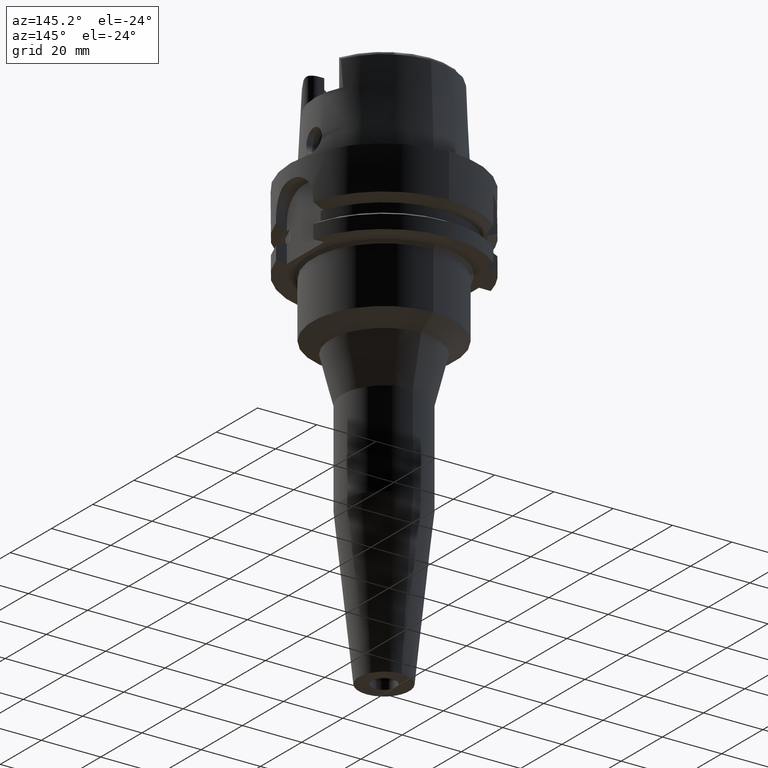
[diagram: clean part render]
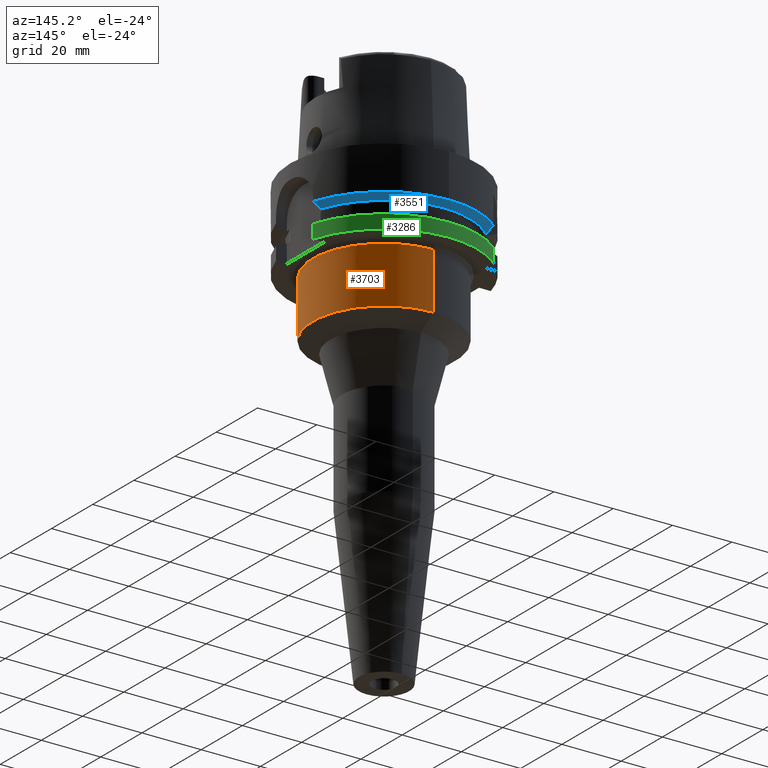
[diagram: same view with three faces highlighted in distinct colors, each labeled with its STEP entity id]
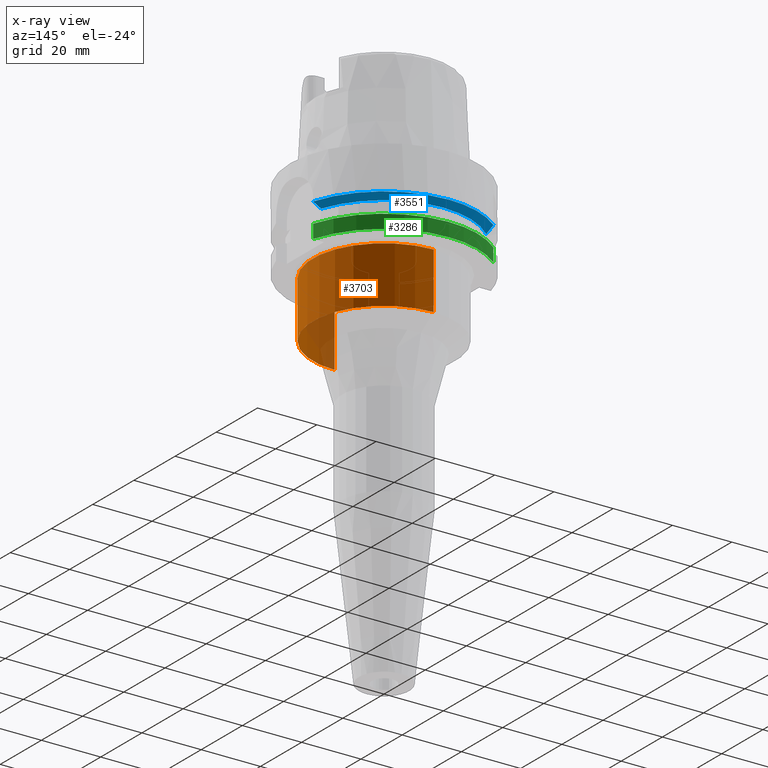
[diagram: x-ray of the same camera — body ghosted, the three highlighted faces saturated]
A machine part, auxiliary view with three faces highlighted in distinct colors.
The next image is the same camera in x-ray (body ghosted, the three faces saturated) — at least one of them is partly hidden behind the body in this view.
Their STEP definitions:

[orange] entity #3703 — the highlighted cylindrical surface (partial cylindrical patch) has radius 24 mm, axis along (0, 0, 1).
#1631=CARTESIAN_POINT('',(0.E0,0.E0,-2.7E1));
#1632=DIRECTION('',(0.E0,0.E0,-1.E0));
#1633=DIRECTION('',(0.E0,1.E0,0.E0));
#1634=AXIS2_PLACEMENT_3D('',#1631,#1632,#1633);
#1639=DIRECTION('',(0.E0,8.152542968194E-14,-1.E0));
#1640=VECTOR('',#1639,1.9E1);
#1641=CARTESIAN_POINT('',(0.E0,2.4E1,-2.7E1));
#1642=LINE('',#1641,#1640);
#1646=DIRECTION('',(0.E0,-8.152542968194E-14,-1.E0));
#1647=VECTOR('',#1646,1.9E1);
#1648=CARTESIAN_POINT('',(0.E0,-2.4E1,-2.7E1));
#1649=LINE('',#1648,#1647);
#1683=CARTESIAN_POINT('',(0.E0,0.E0,-4.6E1));
#1684=DIRECTION('',(0.E0,0.E0,1.E0));
#1685=DIRECTION('',(0.E0,-1.E0,0.E0));
#1686=AXIS2_PLACEMENT_3D('',#1683,#1684,#1685);
#2452=CARTESIAN_POINT('',(0.E0,2.4E1,-4.6E1));
#2453=VERTEX_POINT('',#2452);
#2454=CARTESIAN_POINT('',(0.E0,-2.4E1,-4.6E1));
#2455=VERTEX_POINT('',#2454);
#2456=CARTESIAN_POINT('',(0.E0,2.4E1,-2.7E1));
#2457=VERTEX_POINT('',#2456);
#2458=CARTESIAN_POINT('',(0.E0,-2.4E1,-2.7E1));
#2459=VERTEX_POINT('',#2458);
#3689=CARTESIAN_POINT('',(0.E0,0.E0,-1.591E2));
#3690=DIRECTION('',(0.E0,0.E0,1.E0));
#3691=DIRECTION('',(0.E0,1.E0,0.E0));
#3692=AXIS2_PLACEMENT_3D('',#3689,#3690,#3691);
#3693=CYLINDRICAL_SURFACE('',#3692,2.4E1);
#3695=ORIENTED_EDGE('',*,*,#3694,.T.);
#3697=ORIENTED_EDGE('',*,*,#3696,.F.);
#3699=ORIENTED_EDGE('',*,*,#3698,.F.);
#3700=ORIENTED_EDGE('',*,*,#3682,.F.);
#3701=EDGE_LOOP('',(#3695,#3697,#3699,#3700));
#3702=FACE_OUTER_BOUND('',#3701,.F.);
#1635=CIRCLE('',#1634,2.4E1);
#1687=CIRCLE('',#1686,2.4E1);
#3682=EDGE_CURVE('',#2457,#2459,#1635,.T.);
#3694=EDGE_CURVE('',#2457,#2453,#1642,.T.);
#3696=EDGE_CURVE('',#2455,#2453,#1687,.T.);
#3698=EDGE_CURVE('',#2459,#2455,#1649,.T.);
#3703=ADVANCED_FACE('',(#3702),#3693,.T.);

[blue] entity #3551 — the highlighted conical surface has half-angle 60 deg.
#706=CARTESIAN_POINT('',(-1.999999142507E1,2.085843318849E1,-1.6125E1));
#707=CARTESIAN_POINT('',(-1.999999142507E1,2.124691956341E1,-1.596310477196E1));
#708=CARTESIAN_POINT('',(-2.000000520740E1,2.202238652283E1,-1.563521352518E1));
#709=CARTESIAN_POINT('',(-1.999999463649E1,2.318178825072E1,-1.513454848004E1));
#710=CARTESIAN_POINT('',(-2.000000904326E1,2.395170717240E1,-1.479396141890E1));
#711=CARTESIAN_POINT('',(-2.000000904326E1,2.433617961532E1,-1.462246850769E1));
#769=CARTESIAN_POINT('',(0.E0,0.E0,-1.6125E1));
#770=DIRECTION('',(0.E0,0.E0,1.E0));
#771=DIRECTION('',(9.502643111725E-1,3.114446000686E-1,0.E0));
#772=AXIS2_PLACEMENT_3D('',#769,#770,#771);
#777=CARTESIAN_POINT('',(0.E0,0.E0,-1.6125E1));
#778=DIRECTION('',(0.E0,0.E0,1.E0));
#779=DIRECTION('',(0.E0,1.E0,0.E0));
#780=AXIS2_PLACEMENT_3D('',#777,#778,#779);
#1412=CARTESIAN_POINT('',(2.746035048403E1,9.000000214625E0,-1.6125E1));
#1413=CARTESIAN_POINT('',(2.775625425626E1,9.000000214625E0,-1.596265672987E1));
#1414=CARTESIAN_POINT('',(2.835274665350E1,8.999999992174E0,-1.563489256981E1));
#1415=CARTESIAN_POINT('',(2.926159276161E1,8.999999705452E0,-1.513403981892E1));
#1416=CARTESIAN_POINT('',(2.987689953426E1,9.000000692495E0,-1.479402310489E1));
#1417=CARTESIAN_POINT('',(3.018691748979E1,9.000000692495E0,-1.462249534001E1));
#1422=CARTESIAN_POINT('',(0.E0,0.E0,-1.462250092524E1));
#1423=DIRECTION('',(0.E0,0.E0,1.E0));
#1424=DIRECTION('',(9.583148474999E-1,2.857142857143E-1,0.E0));
#1425=AXIS2_PLACEMENT_3D('',#1422,#1423,#1424);
#1430=CARTESIAN_POINT('',(0.E0,0.E0,-1.462250092524E1));
#1431=DIRECTION('',(0.E0,0.E0,1.E0));
#1432=DIRECTION('',(0.E0,1.E0,0.E0));
#1433=AXIS2_PLACEMENT_3D('',#1430,#1431,#1432);
#2496=CARTESIAN_POINT('',(-1.999999142507E1,2.085843318849E1,-1.6125E1));
#2498=VERTEX_POINT('',#2496);
#2499=VERTEX_POINT('',#711);
#2603=CARTESIAN_POINT('',(2.746035048403E1,9.000000214625E0,-1.6125E1));
#2604=VERTEX_POINT('',#2603);
#2605=CARTESIAN_POINT('',(2.644025879904E-14,2.889759526419E1,-1.6125E1));
#2606=VERTEX_POINT('',#2605);
#2609=VERTEX_POINT('',#1417);
#2610=CARTESIAN_POINT('',(0.E0,3.15E1,-1.462250092524E1));
#2611=VERTEX_POINT('',#2610);
#3538=CARTESIAN_POINT('',(0.E0,0.E0,-1.537375046262E1));
#3539=DIRECTION('',(0.E0,0.E0,1.E0));
#3540=DIRECTION('',(0.E0,1.E0,0.E0));
#3541=AXIS2_PLACEMENT_3D('',#3538,#3539,#3540);
#3542=CONICAL_SURFACE('',#3541,3.019879763210E1,6.E1);
#3543=ORIENTED_EDGE('',*,*,#3038,.F.);
#3544=ORIENTED_EDGE('',*,*,#3072,.F.);
#3545=ORIENTED_EDGE('',*,*,#3070,.F.);
#3546=ORIENTED_EDGE('',*,*,#3495,.T.);
#3547=ORIENTED_EDGE('',*,*,#3480,.T.);
#3548=ORIENTED_EDGE('',*,*,#3007,.T.);
#3549=EDGE_LOOP('',(#3543,#3544,#3545,#3546,#3547,#3548));
#3550=FACE_OUTER_BOUND('',#3549,.F.);
#712=B_SPLINE_CURVE_WITH_KNOTS('',3,(#706,#707,#708,#709,#710,#711),
.UNSPECIFIED.,.F.,.F.,(4,1,1,4),(0.E0,3.333333333333E-1,6.666666666667E-1,1.E0),
.UNSPECIFIED.);
#773=CIRCLE('',#772,2.889759526419E1);
#781=CIRCLE('',#780,2.889759526419E1);
#1418=B_SPLINE_CURVE_WITH_KNOTS('',3,(#1412,#1413,#1414,#1415,#1416,#1417),
.UNSPECIFIED.,.F.,.F.,(4,1,1,4),(0.E0,3.333333333333E-1,6.666666666667E-1,1.E0),
.UNSPECIFIED.);
#1426=CIRCLE('',#1425,3.15E1);
#1434=CIRCLE('',#1433,3.15E1);
#3007=EDGE_CURVE('',#2611,#2499,#1434,.T.);
#3038=EDGE_CURVE('',#2498,#2499,#712,.T.);
#3070=EDGE_CURVE('',#2604,#2606,#773,.T.);
#3072=EDGE_CURVE('',#2606,#2498,#781,.T.);
#3480=EDGE_CURVE('',#2609,#2611,#1426,.T.);
#3495=EDGE_CURVE('',#2604,#2609,#1418,.T.);
#3551=ADVANCED_FACE('',(#3550),#3542,.T.);

[green] entity #3286 — the highlighted cylindrical surface (partial cylindrical patch) has radius 31.5 mm, axis along (0, 0, 1).
#1018=CARTESIAN_POINT('',(0.E0,0.E0,-2.6E1));
#1019=DIRECTION('',(0.E0,0.E0,1.E0));
#1020=DIRECTION('',(9.583148474999E-1,2.857142857143E-1,0.E0));
#1021=AXIS2_PLACEMENT_3D('',#1018,#1019,#1020);
#1026=CARTESIAN_POINT('',(0.E0,0.E0,-2.6E1));
#1027=DIRECTION('',(0.E0,0.E0,1.E0));
#1028=DIRECTION('',(0.E0,1.E0,0.E0));
#1029=AXIS2_PLACEMENT_3D('',#1026,#1027,#1028);
#1057=DIRECTION('',(1.956587004959E-6,1.607966851556E-6,-9.999999999968E-1));
#1058=VECTOR('',#1057,4.622468514639E0);
#1059=CARTESIAN_POINT('',(-2.000000904426E1,2.433617961450E1,
-2.137753148538E1));
#1060=LINE('',#1059,#1058);
#1064=DIRECTION('',(-4.466501118555E-8,1.498112946370E-7,1.E0));
#1065=VECTOR('',#1064,4.622495339674E0);
#1066=CARTESIAN_POINT('',(3.018691769625E1,9.E0,-2.6E1));
#1067=LINE('',#1066,#1065);
#1523=CARTESIAN_POINT('',(0.E0,0.E0,-2.137749907476E1));
#1524=DIRECTION('',(0.E0,0.E0,-1.E0));
#1525=DIRECTION('',(-6.349206349206E-1,7.725773665802E-1,0.E0));
#1526=AXIS2_PLACEMENT_3D('',#1523,#1524,#1525);
#1531=CARTESIAN_POINT('',(0.E0,0.E0,-2.137749907476E1));
#1532=DIRECTION('',(0.E0,0.E0,-1.E0));
#1533=DIRECTION('',(0.E0,1.E0,0.E0));
#1534=AXIS2_PLACEMENT_3D('',#1531,#1532,#1533);
#2465=CARTESIAN_POINT('',(-2.E1,2.433618704728E1,-2.6E1));
#2467=VERTEX_POINT('',#2465);
#2486=CARTESIAN_POINT('',(3.018691769625E1,9.E0,-2.6E1));
#2487=VERTEX_POINT('',#2486);
#2488=CARTESIAN_POINT('',(1.065814103640E-14,3.15E1,-2.6E1));
#2489=VERTEX_POINT('',#2488);
#2490=CARTESIAN_POINT('',(-2.000000904426E1,2.433617961450E1,
-2.137753148538E1));
#2491=VERTEX_POINT('',#2490);
#2510=CARTESIAN_POINT('',(3.018691748978E1,9.000000692502E0,-2.137750466033E1));
#2511=VERTEX_POINT('',#2510);
#2512=CARTESIAN_POINT('',(0.E0,3.15E1,-2.137749907476E1));
#2513=VERTEX_POINT('',#2512);
#3270=CARTESIAN_POINT('',(0.E0,0.E0,-1.591E2));
#3271=DIRECTION('',(0.E0,0.E0,1.E0));
#3272=DIRECTION('',(0.E0,1.E0,0.E0));
#3273=AXIS2_PLACEMENT_3D('',#3270,#3271,#3272);
#3274=CYLINDRICAL_SURFACE('',#3273,3.15E1);
#3275=ORIENTED_EDGE('',*,*,#3259,.T.);
#3276=ORIENTED_EDGE('',*,*,#3242,.F.);
#3277=ORIENTED_EDGE('',*,*,#3240,.F.);
#3279=ORIENTED_EDGE('',*,*,#3278,.T.);
#3281=ORIENTED_EDGE('',*,*,#3280,.F.);
#3283=ORIENTED_EDGE('',*,*,#3282,.F.);
#3284=EDGE_LOOP('',(#3275,#3276,#3277,#3279,#3281,#3283));
#3285=FACE_OUTER_BOUND('',#3284,.F.);
#1022=CIRCLE('',#1021,3.15E1);
#1030=CIRCLE('',#1029,3.15E1);
#1527=CIRCLE('',#1526,3.15E1);
#1535=CIRCLE('',#1534,3.15E1);
#3240=EDGE_CURVE('',#2487,#2489,#1022,.T.);
#3242=EDGE_CURVE('',#2489,#2467,#1030,.T.);
#3259=EDGE_CURVE('',#2491,#2467,#1060,.T.);
#3278=EDGE_CURVE('',#2487,#2511,#1067,.T.);
#3280=EDGE_CURVE('',#2513,#2511,#1535,.T.);
#3282=EDGE_CURVE('',#2491,#2513,#1527,.T.);
#3286=ADVANCED_FACE('',(#3285),#3274,.T.);